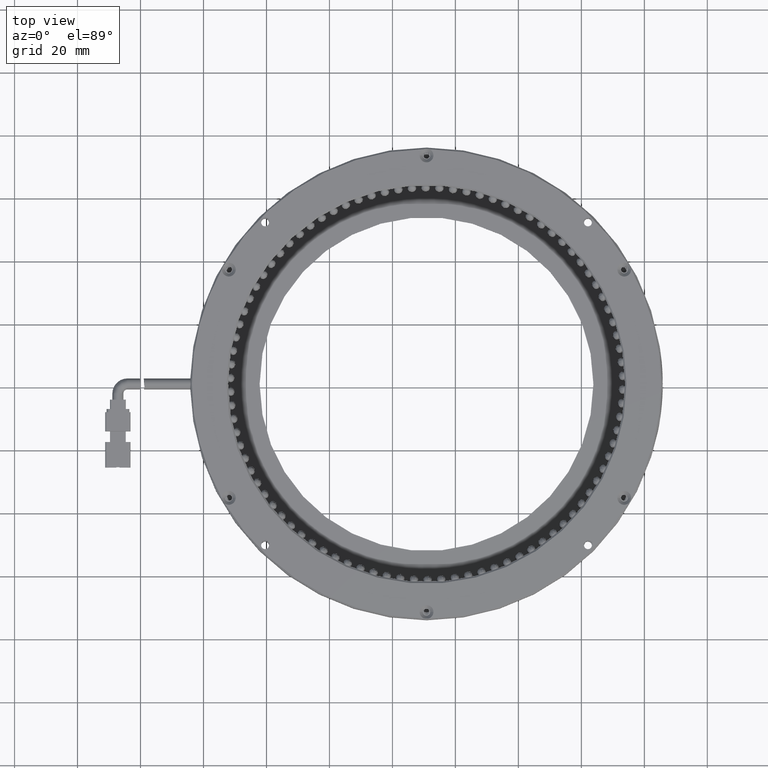
[diagram: clean part render]
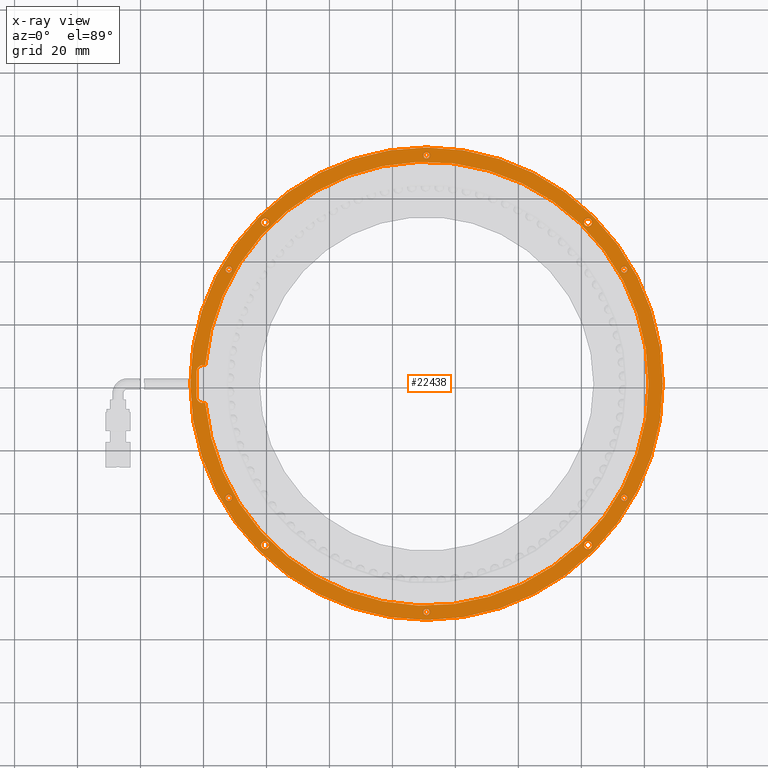
[diagram: x-ray — body ghosted, one internal face saturated and labeled with its STEP entity id]
A machine part, top view, then the same camera in x-ray: the body is ghosted and one INTERNAL B-rep face — a face not visible from any outside direction — is saturated and labeled: STEP entity #22438.
In plain terms, the highlighted planar face has unit normal (0, 0, 1).
Its self-contained STEP definition (entity closure, byte-faithful):
#58 = EDGE_LOOP ( 'NONE', ( #65890, #7518 ) ) ;
#636 = ORIENTED_EDGE ( 'NONE', *, *, #75889, .T. ) ;
#734 = CIRCLE ( 'NONE', #70165, 0.9999999999999991100 ) ;
#750 = EDGE_CURVE ( 'NONE', #17138, #40677, #60758, .T. ) ;
#871 = DIRECTION ( 'NONE',  ( 0.0000000000000000000, 0.0000000000000000000, -1.000000000000000000 ) ) ;
#998 = DIRECTION ( 'NONE',  ( 0.0000000000000000000, 0.0000000000000000000, -1.000000000000000000 ) ) ;
#1447 = LINE ( 'NONE', #17512, #78507 ) ;
#1696 = EDGE_LOOP ( 'NONE', ( #63706, #75622, #28643, #636, #48838, #78773, #64301 ) ) ;
#1705 = DIRECTION ( 'NONE',  ( 1.000000000000000000, 0.0000000000000000000, 0.0000000000000000000 ) ) ;
#1800 = CARTESIAN_POINT ( 'NONE',  ( -64.17760152284266400, 1.095939086294420100, 3.499999999999937400 ) ) ;
#2686 = DIRECTION ( 'NONE',  ( 0.0000000000000000000, 0.0000000000000000000, -1.000000000000000000 ) ) ;
#2785 = CARTESIAN_POINT ( 'NONE',  ( 62.08764011318194800, 52.36118072231920500, 3.499999999999938700 ) ) ;
#3266 = CARTESIAN_POINT ( 'NONE',  ( 60.83764011318196200, 52.36118072231920500, 3.499999999999938700 ) ) ;
#3854 = CARTESIAN_POINT ( 'NONE',  ( -40.44284315886761800, 52.36118072231883500, 3.499999999999938700 ) ) ;
#4787 = AXIS2_PLACEMENT_3D ( 'NONE', #32531, #75053, #38638 ) ;
#4881 = CARTESIAN_POINT ( 'NONE',  ( 11.82239847715786000, -71.40406091370557800, 3.499999999999937400 ) ) ;
#4942 = EDGE_LOOP ( 'NONE', ( #74198, #55708 ) ) ;
#5864 = CARTESIAN_POINT ( 'NONE',  ( 74.60924025152948500, -35.15406091370500300, 3.499999999999937400 ) ) ;
#5945 = VERTEX_POINT ( 'NONE', #69053 ) ;
#6368 = LINE ( 'NONE', #68644, #20630 ) ;
#6469 = ORIENTED_EDGE ( 'NONE', *, *, #62075, .T. ) ;
#6594 = VERTEX_POINT ( 'NONE', #3266 ) ;
#6609 = DIRECTION ( 'NONE',  ( 0.0000000000000000000, 0.0000000000000000000, -1.000000000000000000 ) ) ;
#7456 = CARTESIAN_POINT ( 'NONE',  ( 63.33764011318265800, -50.16930254972964300, 3.499999999999938700 ) ) ;
#7502 = VERTEX_POINT ( 'NONE', #1800 ) ;
#7518 = ORIENTED_EDGE ( 'NONE', *, *, #20434, .T. ) ;
#7978 = CARTESIAN_POINT ( 'NONE',  ( -62.17760152284264300, -5.011604856346799000, 3.499999999999937400 ) ) ;
#8016 = EDGE_CURVE ( 'NONE', #55958, #16685, #74351, .T. ) ;
#8051 = EDGE_LOOP ( 'NONE', ( #15546, #49395 ) ) ;
#8136 = FACE_BOUND ( 'NONE', #32594, .T. ) ;
#8277 = CIRCLE ( 'NONE', #38682, 1.249999999999987100 ) ;
#8616 = EDGE_CURVE ( 'NONE', #67194, #63923, #14107, .T. ) ;
#8897 = DIRECTION ( 'NONE',  ( 1.000000000000000000, 0.0000000000000000000, 0.0000000000000000000 ) ) ;
#9001 = CIRCLE ( 'NONE', #66243, 1.249999999999987100 ) ;
#9267 = VERTEX_POINT ( 'NONE', #31497 ) ;
#9342 = AXIS2_PLACEMENT_3D ( 'NONE', #3854, #46492, #9962 ) ;
#9501 = CIRCLE ( 'NONE', #56856, 0.9999999999999991100 ) ;
#9962 = DIRECTION ( 'NONE',  ( 1.000000000000000000, 0.0000000000000000000, 0.0000000000000000000 ) ) ;
#10019 = AXIS2_PLACEMENT_3D ( 'NONE', #27529, #70083, #33677 ) ;
#10045 = FACE_BOUND ( 'NONE', #20442, .T. ) ;
#10090 = DIRECTION ( 'NONE',  ( 0.0000000000000000000, 0.0000000000000000000, -1.000000000000000000 ) ) ;
#10280 = AXIS2_PLACEMENT_3D ( 'NONE', #31018, #73529, #37115 ) ;
#10572 = VERTEX_POINT ( 'NONE', #15448 ) ;
#10903 = CARTESIAN_POINT ( 'NONE',  ( 10.82239847715735200, 1.095939086294420100, 3.499999999999937400 ) ) ;
#11332 = VERTEX_POINT ( 'NONE', #18283 ) ;
#11805 = CARTESIAN_POINT ( 'NONE',  ( 10.82239847715735200, 1.095939086294420100, 3.499999999999937400 ) ) ;
#13174 = CARTESIAN_POINT ( 'NONE',  ( -39.19284315886690000, -50.16930254973072300, 3.499999999999938700 ) ) ;
#14107 = CIRCLE ( 'NONE', #16741, 1.000000000000000900 ) ;
#14508 = CIRCLE ( 'NONE', #33880, 0.9999999999999991100 ) ;
#14564 = CIRCLE ( 'NONE', #10019, 75.00000000000001400 ) ;
#15387 = EDGE_LOOP ( 'NONE', ( #33738, #77917 ) ) ;
#15439 = DIRECTION ( 'NONE',  ( 0.0000000000000000000, 0.0000000000000000000, -1.000000000000000000 ) ) ;
#15448 = CARTESIAN_POINT ( 'NONE',  ( -62.17760152284265700, 4.988395143653201900, 3.499999999999937400 ) ) ;
#15546 = ORIENTED_EDGE ( 'NONE', *, *, #22569, .T. ) ;
#16244 = CARTESIAN_POINT ( 'NONE',  ( 10.82239847715735000, 73.59593908629442200, 3.499999999999937400 ) ) ;
#16412 = VERTEX_POINT ( 'NONE', #13174 ) ;
#16685 = VERTEX_POINT ( 'NONE', #64501 ) ;
#16741 = AXIS2_PLACEMENT_3D ( 'NONE', #19297, #61898, #25420 ) ;
#17086 = DIRECTION ( 'NONE',  ( 1.000000000000000000, 0.0000000000000000000, -0.0000000000000000000 ) ) ;
#17138 = VERTEX_POINT ( 'NONE', #19759 ) ;
#17373 = CIRCLE ( 'NONE', #55861, 2.000000000000001800 ) ;
#17512 = CARTESIAN_POINT ( 'NONE',  ( -57.93513150267762100, 6.988395143653201000, 3.499999999999937400 ) ) ;
#17960 = DIRECTION ( 'NONE',  ( -1.000000000000000000, 0.0000000000000000000, 0.0000000000000000000 ) ) ;
#17965 = AXIS2_PLACEMENT_3D ( 'NONE', #32332, #74879, #38442 ) ;
#18283 = CARTESIAN_POINT ( 'NONE',  ( 60.83764011318268700, -50.16930254972964300, 3.499999999999938700 ) ) ;
#18752 = VERTEX_POINT ( 'NONE', #54098 ) ;
#19121 = CARTESIAN_POINT ( 'NONE',  ( 74.60924025152871800, 37.34593908629515400, 3.499999999999937400 ) ) ;
#19297 = CARTESIAN_POINT ( 'NONE',  ( -51.96444329721453000, 37.34593908629427300, 3.499999999999937400 ) ) ;
#19395 = DIRECTION ( 'NONE',  ( 0.0000000000000000000, 0.0000000000000000000, -1.000000000000000000 ) ) ;
#19759 = CARTESIAN_POINT ( 'NONE',  ( 81.32239847715736400, 1.095939086294420100, 3.499999999999937400 ) ) ;
#20434 = EDGE_CURVE ( 'NONE', #73644, #51781, #9501, .T. ) ;
#20442 = EDGE_LOOP ( 'NONE', ( #29139, #54616 ) ) ;
#20549 = CARTESIAN_POINT ( 'NONE',  ( -60.17760152284265700, 4.988395143653201900, 3.499999999999937400 ) ) ;
#20630 = VECTOR ( 'NONE', #38352, 1000.000000000000000 ) ;
#20866 = CIRCLE ( 'NONE', #35319, 1.249999999999987100 ) ;
#21402 = CARTESIAN_POINT ( 'NONE',  ( -60.17760152284265700, -3.011604856346799400, 3.499999999999937400 ) ) ;
#21441 = ORIENTED_EDGE ( 'NONE', *, *, #8016, .T. ) ;
#22376 = DIRECTION ( 'NONE',  ( 1.000000000000000000, 0.0000000000000000000, 0.0000000000000000000 ) ) ;
#22438 = ADVANCED_FACE ( 'NONE', ( #74815, #42438, #10045, #72928, #56730, #40548, #24367, #8136, #71019, #54815, #38651, #22484 ), #22929, .T. ) ;
#22484 = FACE_BOUND ( 'NONE', #1696, .T. ) ;
#22569 = EDGE_CURVE ( 'NONE', #16412, #5945, #52842, .T. ) ;
#22929 = PLANE ( 'NONE',  #25524 ) ;
#23179 = EDGE_LOOP ( 'NONE', ( #23497, #41246 ) ) ;
#23376 = EDGE_CURVE ( 'NONE', #6594, #47898, #20866, .T. ) ;
#23497 = ORIENTED_EDGE ( 'NONE', *, *, #73680, .T. ) ;
#24281 = VERTEX_POINT ( 'NONE', #31201 ) ;
#24367 = FACE_BOUND ( 'NONE', #23179, .T. ) ;
#24752 = EDGE_CURVE ( 'NONE', #18752, #73507, #1447, .T. ) ;
#24856 = EDGE_CURVE ( 'NONE', #63923, #67194, #43282, .T. ) ;
#25034 = CARTESIAN_POINT ( 'NONE',  ( -40.44284315886688600, -50.16930254973072300, 3.499999999999938700 ) ) ;
#25420 = DIRECTION ( 'NONE',  ( 1.000000000000000000, 0.0000000000000000000, 0.0000000000000000000 ) ) ;
#25524 = AXIS2_PLACEMENT_3D ( 'NONE', #10903, #53523, #17086 ) ;
#25827 = CARTESIAN_POINT ( 'NONE',  ( 9.822398477157861400, -71.40406091370557800, 3.499999999999937400 ) ) ;
#26039 = AXIS2_PLACEMENT_3D ( 'NONE', #55859, #19395, #62002 ) ;
#26338 = DIRECTION ( 'NONE',  ( 0.0000000000000000000, 0.0000000000000000000, -1.000000000000000000 ) ) ;
#26345 = CARTESIAN_POINT ( 'NONE',  ( 73.60924025152871800, 37.34593908629515400, 3.499999999999937400 ) ) ;
#26674 = DIRECTION ( 'NONE',  ( -1.000000000000000000, 0.0000000000000000000, 0.0000000000000000000 ) ) ;
#26899 = ORIENTED_EDGE ( 'NONE', *, *, #37112, .T. ) ;
#27497 = CIRCLE ( 'NONE', #36483, 1.000000000000000900 ) ;
#27517 = DIRECTION ( 'NONE',  ( -1.000000000000000000, 0.0000000000000000000, 0.0000000000000000000 ) ) ;
#27529 = CARTESIAN_POINT ( 'NONE',  ( 10.82239847715735200, 1.095939086294420100, 3.499999999999937400 ) ) ;
#27585 = CIRCLE ( 'NONE', #57505, 1.000000000000000900 ) ;
#27749 = CIRCLE ( 'NONE', #76136, 1.249999999999987100 ) ;
#28164 = ORIENTED_EDGE ( 'NONE', *, *, #70159, .T. ) ;
#28614 = CARTESIAN_POINT ( 'NONE',  ( 63.33764011318193400, 52.36118072231920500, 3.499999999999938700 ) ) ;
#28643 = ORIENTED_EDGE ( 'NONE', *, *, #24752, .T. ) ;
#28880 = DIRECTION ( 'NONE',  ( 0.0000000000000000000, 0.0000000000000000000, -1.000000000000000000 ) ) ;
#28976 = CIRCLE ( 'NONE', #17965, 0.9999999999999991100 ) ;
#29139 = ORIENTED_EDGE ( 'NONE', *, *, #8616, .T. ) ;
#29187 = ORIENTED_EDGE ( 'NONE', *, *, #76550, .T. ) ;
#29284 = EDGE_CURVE ( 'NONE', #53348, #68147, #17373, .T. ) ;
#29451 = CARTESIAN_POINT ( 'NONE',  ( -39.19284315886763200, 52.36118072231883500, 3.499999999999938700 ) ) ;
#29516 = DIRECTION ( 'NONE',  ( 0.0000000000000000000, 0.0000000000000000000, -1.000000000000000000 ) ) ;
#29684 = CARTESIAN_POINT ( 'NONE',  ( 72.60924025152871800, 37.34593908629515400, 3.499999999999937400 ) ) ;
#29883 = CARTESIAN_POINT ( 'NONE',  ( -40.44284315886688600, -50.16930254973072300, 3.499999999999938700 ) ) ;
#31018 = CARTESIAN_POINT ( 'NONE',  ( 10.82239847715735200, 1.095939086294420100, 3.499999999999937400 ) ) ;
#31113 = ORIENTED_EDGE ( 'NONE', *, *, #32701, .T. ) ;
#31185 = DIRECTION ( 'NONE',  ( 1.000000000000000000, 0.0000000000000000000, 0.0000000000000000000 ) ) ;
#31201 = CARTESIAN_POINT ( 'NONE',  ( 9.822398477157351600, 73.59593908629442200, 3.499999999999937400 ) ) ;
#31497 = CARTESIAN_POINT ( 'NONE',  ( -50.96444329721429500, -35.15406091370587700, 3.499999999999937400 ) ) ;
#31833 = CARTESIAN_POINT ( 'NONE',  ( -59.41254942620987100, -5.011604856346798100, 3.499999999999937400 ) ) ;
#32050 = AXIS2_PLACEMENT_3D ( 'NONE', #26345, #68901, #32506 ) ;
#32112 = EDGE_CURVE ( 'NONE', #68147, #10572, #6368, .T. ) ;
#32332 = CARTESIAN_POINT ( 'NONE',  ( 10.82239847715735000, 73.59593908629442200, 3.499999999999937400 ) ) ;
#32483 = AXIS2_PLACEMENT_3D ( 'NONE', #43086, #6609, #49217 ) ;
#32506 = DIRECTION ( 'NONE',  ( 1.000000000000000000, 0.0000000000000000000, 0.0000000000000000000 ) ) ;
#32531 = CARTESIAN_POINT ( 'NONE',  ( 10.82239847715735200, 1.095939086294420100, 3.499999999999937400 ) ) ;
#32594 = EDGE_LOOP ( 'NONE', ( #6469, #54805 ) ) ;
#32701 = EDGE_CURVE ( 'NONE', #42855, #24281, #28976, .T. ) ;
#33677 = DIRECTION ( 'NONE',  ( -1.000000000000000000, 0.0000000000000000000, 0.0000000000000000000 ) ) ;
#33738 = ORIENTED_EDGE ( 'NONE', *, *, #34423, .T. ) ;
#33880 = AXIS2_PLACEMENT_3D ( 'NONE', #65319, #28880, #71453 ) ;
#34342 = CARTESIAN_POINT ( 'NONE',  ( 62.08764011318194800, 52.36118072231920500, 3.499999999999938700 ) ) ;
#34423 = EDGE_CURVE ( 'NONE', #7502, #75365, #14564, .T. ) ;
#34656 = EDGE_CURVE ( 'NONE', #5945, #16412, #57328, .T. ) ;
#35319 = AXIS2_PLACEMENT_3D ( 'NONE', #2785, #45398, #8897 ) ;
#36015 = DIRECTION ( 'NONE',  ( 1.000000000000000000, 0.0000000000000000000, 0.0000000000000000000 ) ) ;
#36267 = CIRCLE ( 'NONE', #26039, 1.000000000000000900 ) ;
#36483 = AXIS2_PLACEMENT_3D ( 'NONE', #37327, #871, #43421 ) ;
#37112 = EDGE_CURVE ( 'NONE', #40446, #60731, #51536, .T. ) ;
#37115 = DIRECTION ( 'NONE',  ( 1.000000000000000000, 0.0000000000000000000, 0.0000000000000000000 ) ) ;
#37127 = EDGE_CURVE ( 'NONE', #51781, #73644, #14508, .T. ) ;
#37327 = CARTESIAN_POINT ( 'NONE',  ( -51.96444329721429500, -35.15406091370587700, 3.499999999999937400 ) ) ;
#37458 = CARTESIAN_POINT ( 'NONE',  ( -51.96444329721453000, 37.34593908629427300, 3.499999999999937400 ) ) ;
#38165 = DIRECTION ( 'NONE',  ( 0.0000000000000000000, 0.0000000000000000000, -1.000000000000000000 ) ) ;
#38352 = DIRECTION ( 'NONE',  ( -0.0000000000000000000, 1.000000000000000000, 0.0000000000000000000 ) ) ;
#38358 = DIRECTION ( 'NONE',  ( -1.000000000000000000, -0.0000000000000000000, -0.0000000000000000000 ) ) ;
#38442 = DIRECTION ( 'NONE',  ( 1.000000000000000000, 0.0000000000000000000, 0.0000000000000000000 ) ) ;
#38638 = DIRECTION ( 'NONE',  ( 1.000000000000000000, 0.0000000000000000000, 0.0000000000000000000 ) ) ;
#38651 = FACE_BOUND ( 'NONE', #71816, .T. ) ;
#38682 = AXIS2_PLACEMENT_3D ( 'NONE', #39178, #2686, #45285 ) ;
#38897 = CARTESIAN_POINT ( 'NONE',  ( 85.82239847715736400, 1.095939086294429400, 3.499999999999937400 ) ) ;
#38974 = EDGE_CURVE ( 'NONE', #71522, #57612, #27585, .T. ) ;
#39178 = CARTESIAN_POINT ( 'NONE',  ( 62.08764011318267300, -50.16930254972964300, 3.499999999999938700 ) ) ;
#39595 = EDGE_LOOP ( 'NONE', ( #21441, #51554 ) ) ;
#40329 = AXIS2_PLACEMENT_3D ( 'NONE', #25034, #67580, #31185 ) ;
#40436 = DIRECTION ( 'NONE',  ( 1.000000000000000000, 0.0000000000000000000, 0.0000000000000000000 ) ) ;
#40446 = VERTEX_POINT ( 'NONE', #29451 ) ;
#40548 = FACE_BOUND ( 'NONE', #39595, .T. ) ;
#40677 = VERTEX_POINT ( 'NONE', #31833 ) ;
#41246 = ORIENTED_EDGE ( 'NONE', *, *, #38974, .T. ) ;
#42438 = FACE_BOUND ( 'NONE', #51664, .T. ) ;
#42855 = VERTEX_POINT ( 'NONE', #56842 ) ;
#43086 = CARTESIAN_POINT ( 'NONE',  ( 73.60924025152948500, -35.15406091370500300, 3.499999999999937400 ) ) ;
#43282 = CIRCLE ( 'NONE', #71661, 1.000000000000000900 ) ;
#43309 = CARTESIAN_POINT ( 'NONE',  ( -41.69284315886760300, 52.36118072231883500, 3.499999999999938700 ) ) ;
#43421 = DIRECTION ( 'NONE',  ( 1.000000000000000000, 0.0000000000000000000, 0.0000000000000000000 ) ) ;
#43545 = DIRECTION ( 'NONE',  ( 1.000000000000000000, 0.0000000000000000000, 0.0000000000000000000 ) ) ;
#44413 = VECTOR ( 'NONE', #38358, 1000.000000000000000 ) ;
#45285 = DIRECTION ( 'NONE',  ( 1.000000000000000000, 0.0000000000000000000, 0.0000000000000000000 ) ) ;
#45398 = DIRECTION ( 'NONE',  ( 0.0000000000000000000, 0.0000000000000000000, -1.000000000000000000 ) ) ;
#46175 = CIRCLE ( 'NONE', #10280, 70.50000000000000000 ) ;
#46492 = DIRECTION ( 'NONE',  ( 0.0000000000000000000, 0.0000000000000000000, -1.000000000000000000 ) ) ;
#46620 = CARTESIAN_POINT ( 'NONE',  ( 73.60924025152871800, 37.34593908629515400, 3.499999999999937400 ) ) ;
#47097 = ORIENTED_EDGE ( 'NONE', *, *, #77946, .T. ) ;
#47898 = VERTEX_POINT ( 'NONE', #28614 ) ;
#48838 = ORIENTED_EDGE ( 'NONE', *, *, #750, .T. ) ;
#49217 = DIRECTION ( 'NONE',  ( 1.000000000000000000, 0.0000000000000000000, 0.0000000000000000000 ) ) ;
#49395 = ORIENTED_EDGE ( 'NONE', *, *, #34656, .T. ) ;
#50275 = EDGE_CURVE ( 'NONE', #75365, #7502, #53659, .T. ) ;
#50422 = CARTESIAN_POINT ( 'NONE',  ( -60.17760152284265700, -5.011604856346799900, 3.499999999999937400 ) ) ;
#51536 = CIRCLE ( 'NONE', #9342, 1.249999999999987100 ) ;
#51554 = ORIENTED_EDGE ( 'NONE', *, *, #68638, .T. ) ;
#51664 = EDGE_LOOP ( 'NONE', ( #31113, #66628 ) ) ;
#51781 = VERTEX_POINT ( 'NONE', #4881 ) ;
#51895 = CARTESIAN_POINT ( 'NONE',  ( 62.08764011318267300, -50.16930254972964300, 3.499999999999938700 ) ) ;
#52372 = CARTESIAN_POINT ( 'NONE',  ( -52.96444329721429500, -35.15406091370587700, 3.499999999999937400 ) ) ;
#52694 = DIRECTION ( 'NONE',  ( 1.000000000000000000, 0.0000000000000000000, 0.0000000000000000000 ) ) ;
#52842 = CIRCLE ( 'NONE', #40329, 1.249999999999987100 ) ;
#53178 = CARTESIAN_POINT ( 'NONE',  ( -52.96444329721453000, 37.34593908629427300, 3.499999999999937400 ) ) ;
#53348 = VERTEX_POINT ( 'NONE', #50422 ) ;
#53523 = DIRECTION ( 'NONE',  ( 0.0000000000000000000, 0.0000000000000000000, 1.000000000000000000 ) ) ;
#53659 = CIRCLE ( 'NONE', #78916, 75.00000000000001400 ) ;
#53775 = EDGE_CURVE ( 'NONE', #59467, #9267, #27497, .T. ) ;
#54098 = CARTESIAN_POINT ( 'NONE',  ( -60.17760152284265700, 6.988395143653201900, 3.499999999999937400 ) ) ;
#54129 = EDGE_CURVE ( 'NONE', #24281, #42855, #734, .T. ) ;
#54394 = DIRECTION ( 'NONE',  ( 0.0000000000000000000, 0.0000000000000000000, 1.000000000000000000 ) ) ;
#54585 = EDGE_LOOP ( 'NONE', ( #26899, #28164 ) ) ;
#54616 = ORIENTED_EDGE ( 'NONE', *, *, #24856, .T. ) ;
#54805 = ORIENTED_EDGE ( 'NONE', *, *, #23376, .T. ) ;
#54815 = FACE_BOUND ( 'NONE', #8051, .T. ) ;
#55708 = ORIENTED_EDGE ( 'NONE', *, *, #53775, .T. ) ;
#55859 = CARTESIAN_POINT ( 'NONE',  ( 73.60924025152948500, -35.15406091370500300, 3.499999999999937400 ) ) ;
#55861 = AXIS2_PLACEMENT_3D ( 'NONE', #21402, #63983, #27517 ) ;
#55958 = VERTEX_POINT ( 'NONE', #5864 ) ;
#56207 = EDGE_CURVE ( 'NONE', #40677, #53348, #76760, .T. ) ;
#56730 = FACE_BOUND ( 'NONE', #58, .T. ) ;
#56842 = CARTESIAN_POINT ( 'NONE',  ( 11.82239847715735000, 73.59593908629442200, 3.499999999999937400 ) ) ;
#56856 = AXIS2_PLACEMENT_3D ( 'NONE', #74588, #38165, #1705 ) ;
#57328 = CIRCLE ( 'NONE', #57493, 1.249999999999987100 ) ;
#57493 = AXIS2_PLACEMENT_3D ( 'NONE', #29883, #72441, #36015 ) ;
#57505 = AXIS2_PLACEMENT_3D ( 'NONE', #46620, #10090, #52694 ) ;
#57612 = VERTEX_POINT ( 'NONE', #19121 ) ;
#58021 = DIRECTION ( 'NONE',  ( 1.000000000000000000, 0.0000000000000000000, 0.0000000000000000000 ) ) ;
#58827 = DIRECTION ( 'NONE',  ( 0.0000000000000000000, 0.0000000000000000000, -1.000000000000000000 ) ) ;
#59202 = CARTESIAN_POINT ( 'NONE',  ( -50.96444329721453000, 37.34593908629427300, 3.499999999999937400 ) ) ;
#59467 = VERTEX_POINT ( 'NONE', #52372 ) ;
#60268 = EDGE_CURVE ( 'NONE', #9267, #59467, #78291, .T. ) ;
#60731 = VERTEX_POINT ( 'NONE', #43309 ) ;
#60758 = CIRCLE ( 'NONE', #4787, 70.50000000000000000 ) ;
#60788 = AXIS2_PLACEMENT_3D ( 'NONE', #62828, #26338, #68892 ) ;
#61592 = CIRCLE ( 'NONE', #76235, 1.249999999999987100 ) ;
#61898 = DIRECTION ( 'NONE',  ( 0.0000000000000000000, 0.0000000000000000000, -1.000000000000000000 ) ) ;
#62002 = DIRECTION ( 'NONE',  ( 1.000000000000000000, 0.0000000000000000000, 0.0000000000000000000 ) ) ;
#62075 = EDGE_CURVE ( 'NONE', #47898, #6594, #61592, .T. ) ;
#62828 = CARTESIAN_POINT ( 'NONE',  ( -51.96444329721429500, -35.15406091370587700, 3.499999999999937400 ) ) ;
#63176 = DIRECTION ( 'NONE',  ( 0.0000000000000000000, 0.0000000000000000000, -1.000000000000000000 ) ) ;
#63703 = CIRCLE ( 'NONE', #32050, 1.000000000000000900 ) ;
#63706 = ORIENTED_EDGE ( 'NONE', *, *, #32112, .T. ) ;
#63923 = VERTEX_POINT ( 'NONE', #53178 ) ;
#63983 = DIRECTION ( 'NONE',  ( 0.0000000000000000000, 0.0000000000000000000, -1.000000000000000000 ) ) ;
#64301 = ORIENTED_EDGE ( 'NONE', *, *, #29284, .T. ) ;
#64501 = CARTESIAN_POINT ( 'NONE',  ( 72.60924025152948500, -35.15406091370500300, 3.499999999999937400 ) ) ;
#65319 = CARTESIAN_POINT ( 'NONE',  ( 10.82239847715786100, -71.40406091370557800, 3.499999999999937400 ) ) ;
#65839 = EDGE_CURVE ( 'NONE', #10572, #18752, #67122, .T. ) ;
#65890 = ORIENTED_EDGE ( 'NONE', *, *, #37127, .T. ) ;
#65902 = DIRECTION ( 'NONE',  ( 1.000000000000000000, 0.0000000000000000000, -0.0000000000000000000 ) ) ;
#65941 = CARTESIAN_POINT ( 'NONE',  ( -40.44284315886761800, 52.36118072231883500, 3.499999999999938700 ) ) ;
#66243 = AXIS2_PLACEMENT_3D ( 'NONE', #65941, #29516, #72076 ) ;
#66628 = ORIENTED_EDGE ( 'NONE', *, *, #54129, .T. ) ;
#67122 = CIRCLE ( 'NONE', #71589, 2.000000000000001800 ) ;
#67194 = VERTEX_POINT ( 'NONE', #59202 ) ;
#67580 = DIRECTION ( 'NONE',  ( 0.0000000000000000000, 0.0000000000000000000, -1.000000000000000000 ) ) ;
#68147 = VERTEX_POINT ( 'NONE', #68678 ) ;
#68638 = EDGE_CURVE ( 'NONE', #16685, #55958, #36267, .T. ) ;
#68644 = CARTESIAN_POINT ( 'NONE',  ( -62.17760152284264300, 1.095939086294420100, 3.499999999999937400 ) ) ;
#68678 = CARTESIAN_POINT ( 'NONE',  ( -62.17760152284264300, -3.011604856346799400, 3.499999999999937400 ) ) ;
#68892 = DIRECTION ( 'NONE',  ( 1.000000000000000000, 0.0000000000000000000, 0.0000000000000000000 ) ) ;
#68901 = DIRECTION ( 'NONE',  ( 0.0000000000000000000, 0.0000000000000000000, -1.000000000000000000 ) ) ;
#69053 = CARTESIAN_POINT ( 'NONE',  ( -41.69284315886687200, -50.16930254973072300, 3.499999999999938700 ) ) ;
#70083 = DIRECTION ( 'NONE',  ( 0.0000000000000000000, 0.0000000000000000000, 1.000000000000000000 ) ) ;
#70159 = EDGE_CURVE ( 'NONE', #60731, #40446, #9001, .T. ) ;
#70165 = AXIS2_PLACEMENT_3D ( 'NONE', #16244, #58827, #22376 ) ;
#71019 = FACE_BOUND ( 'NONE', #54585, .T. ) ;
#71453 = DIRECTION ( 'NONE',  ( 1.000000000000000000, 0.0000000000000000000, 0.0000000000000000000 ) ) ;
#71522 = VERTEX_POINT ( 'NONE', #29684 ) ;
#71589 = AXIS2_PLACEMENT_3D ( 'NONE', #20549, #63176, #26674 ) ;
#71661 = AXIS2_PLACEMENT_3D ( 'NONE', #37458, #998, #43545 ) ;
#71816 = EDGE_LOOP ( 'NONE', ( #47097, #29187 ) ) ;
#72076 = DIRECTION ( 'NONE',  ( 1.000000000000000000, 0.0000000000000000000, 0.0000000000000000000 ) ) ;
#72441 = DIRECTION ( 'NONE',  ( 0.0000000000000000000, 0.0000000000000000000, -1.000000000000000000 ) ) ;
#72928 = FACE_BOUND ( 'NONE', #4942, .T. ) ;
#73215 = CARTESIAN_POINT ( 'NONE',  ( -59.43092145586856400, 6.988395143653203700, 3.499999999999937400 ) ) ;
#73507 = VERTEX_POINT ( 'NONE', #73215 ) ;
#73529 = DIRECTION ( 'NONE',  ( 0.0000000000000000000, 0.0000000000000000000, -1.000000000000000000 ) ) ;
#73644 = VERTEX_POINT ( 'NONE', #25827 ) ;
#73680 = EDGE_CURVE ( 'NONE', #57612, #71522, #63703, .T. ) ;
#74198 = ORIENTED_EDGE ( 'NONE', *, *, #60268, .T. ) ;
#74351 = CIRCLE ( 'NONE', #32483, 1.000000000000000900 ) ;
#74588 = CARTESIAN_POINT ( 'NONE',  ( 10.82239847715786100, -71.40406091370557800, 3.499999999999937400 ) ) ;
#74815 = FACE_OUTER_BOUND ( 'NONE', #15387, .T. ) ;
#74879 = DIRECTION ( 'NONE',  ( 0.0000000000000000000, 0.0000000000000000000, -1.000000000000000000 ) ) ;
#75053 = DIRECTION ( 'NONE',  ( 0.0000000000000000000, 0.0000000000000000000, -1.000000000000000000 ) ) ;
#75281 = VERTEX_POINT ( 'NONE', #7456 ) ;
#75365 = VERTEX_POINT ( 'NONE', #38897 ) ;
#75622 = ORIENTED_EDGE ( 'NONE', *, *, #65839, .T. ) ;
#75889 = EDGE_CURVE ( 'NONE', #73507, #17138, #46175, .T. ) ;
#76136 = AXIS2_PLACEMENT_3D ( 'NONE', #51895, #15439, #58021 ) ;
#76235 = AXIS2_PLACEMENT_3D ( 'NONE', #34342, #76866, #40436 ) ;
#76550 = EDGE_CURVE ( 'NONE', #11332, #75281, #27749, .T. ) ;
#76760 = LINE ( 'NONE', #7978, #44413 ) ;
#76866 = DIRECTION ( 'NONE',  ( 0.0000000000000000000, 0.0000000000000000000, -1.000000000000000000 ) ) ;
#77917 = ORIENTED_EDGE ( 'NONE', *, *, #50275, .T. ) ;
#77946 = EDGE_CURVE ( 'NONE', #75281, #11332, #8277, .T. ) ;
#78291 = CIRCLE ( 'NONE', #60788, 1.000000000000000900 ) ;
#78507 = VECTOR ( 'NONE', #65902, 1000.000000000000000 ) ;
#78773 = ORIENTED_EDGE ( 'NONE', *, *, #56207, .T. ) ;
#78916 = AXIS2_PLACEMENT_3D ( 'NONE', #11805, #54394, #17960 ) ;